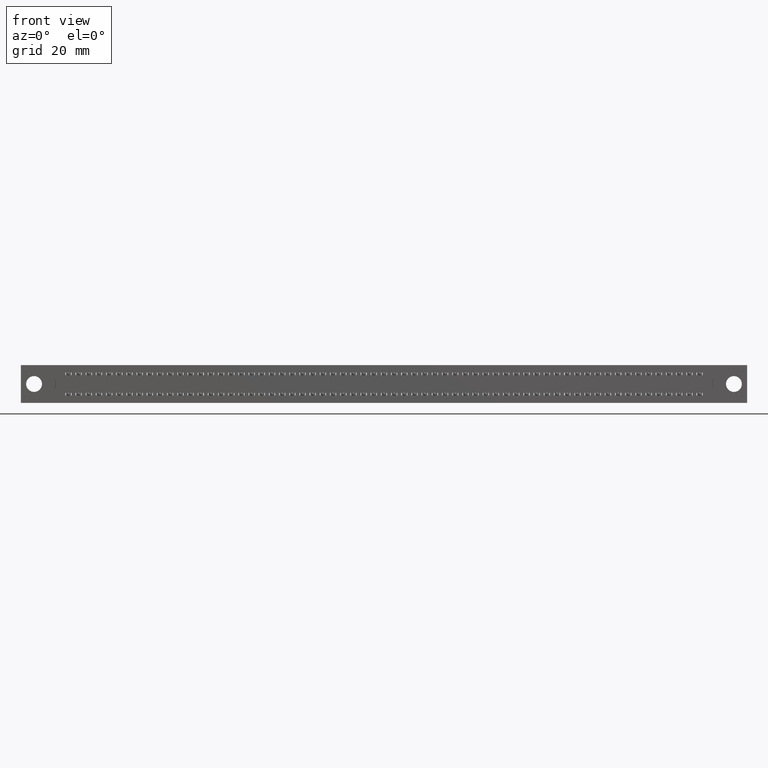
[diagram: clean part render]
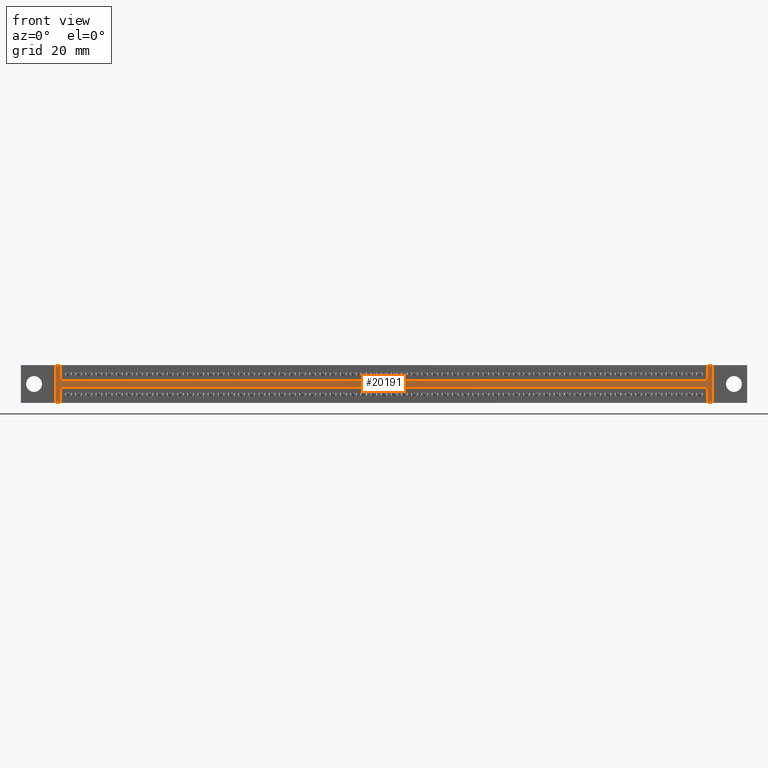
[diagram: same view with one face highlighted and labeled with its STEP entity id]
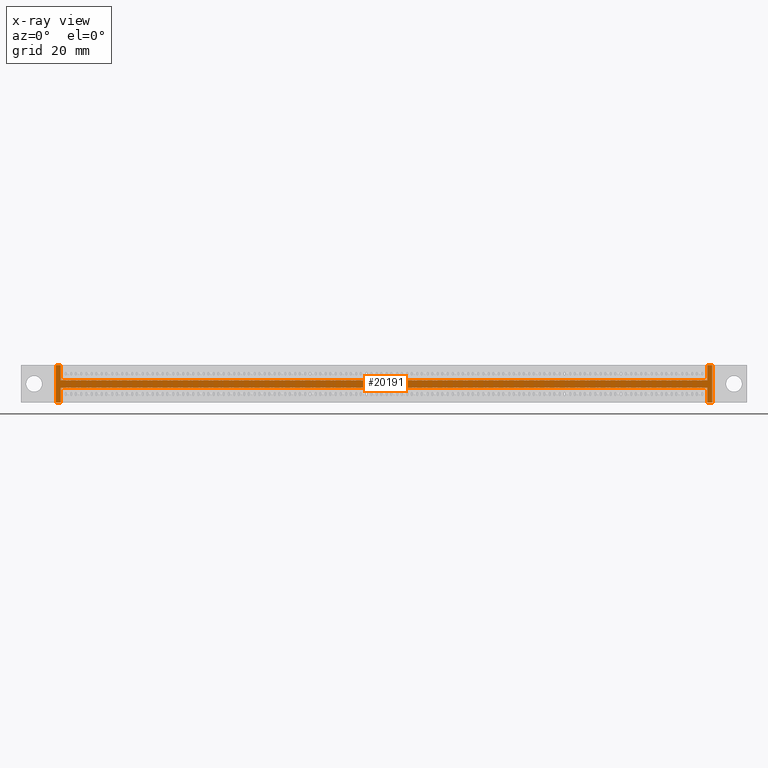
[diagram: x-ray of the same camera — body ghosted, the highlighted face saturated]
A machine part, front view. The second image highlights one B-rep face of the part: STEP entity #20191.
The next image is the same camera in x-ray: the body ghosted, the highlighted face saturated — about 0% of this face is hidden behind the body in this view.
In plain terms, the highlighted planar face has unit normal (0, -1, 0).
Its self-contained STEP definition (entity closure, byte-faithful):
#808 = CARTESIAN_POINT ( 'NONE',  ( 6.742500000000000604, 0.0000000000000000000, -0.3699999999999999956 ) ) ;
#840 = VERTEX_POINT ( 'NONE', #14764 ) ;
#1651 = ORIENTED_EDGE ( 'NONE', *, *, #38375, .F. ) ;
#1678 = ORIENTED_EDGE ( 'NONE', *, *, #32855, .F. ) ;
#1774 = DIRECTION ( 'NONE',  ( 1.000000000000000000, 0.0000000000000000000, 0.0000000000000000000 ) ) ;
#1784 = CARTESIAN_POINT ( 'NONE',  ( 0.3924999999999996825, 0.0000000000000000000, -0.2200000000000000011 ) ) ;
#2070 = ORIENTED_EDGE ( 'NONE', *, *, #26299, .F. ) ;
#2328 = EDGE_CURVE ( 'NONE', #6102, #31407, #37503, .T. ) ;
#2825 = LINE ( 'NONE', #32724, #32345 ) ;
#4207 = CARTESIAN_POINT ( 'NONE',  ( 6.792500000000000426, 0.0000000000000000000, 0.0000000000000000000 ) ) ;
#4378 = PLANE ( 'NONE',  #44230 ) ;
#4789 = EDGE_CURVE ( 'NONE', #840, #33948, #12885, .T. ) ;
#5334 = DIRECTION ( 'NONE',  ( 0.0000000000000000000, -0.0000000000000000000, -1.000000000000000000 ) ) ;
#5468 = CARTESIAN_POINT ( 'NONE',  ( 6.792500000000000426, 0.0000000000000000000, -0.3699999999999992184 ) ) ;
#5729 = VECTOR ( 'NONE', #9466, 39.37007874015748143 ) ;
#6102 = VERTEX_POINT ( 'NONE', #5468 ) ;
#6155 = EDGE_CURVE ( 'NONE', #34598, #6102, #2825, .T. ) ;
#6269 = DIRECTION ( 'NONE',  ( 1.000000000000000000, 0.0000000000000000000, 0.0000000000000000000 ) ) ;
#7618 = DIRECTION ( 'NONE',  ( -0.0000000000000000000, -0.0000000000000000000, -1.000000000000000000 ) ) ;
#9395 = ORIENTED_EDGE ( 'NONE', *, *, #33002, .F. ) ;
#9466 = DIRECTION ( 'NONE',  ( -0.0000000000000000000, -0.0000000000000000000, 1.000000000000000000 ) ) ;
#10667 = VECTOR ( 'NONE', #6269, 39.37007874015748143 ) ;
#12167 = CARTESIAN_POINT ( 'NONE',  ( 0.3924999999999996825, 0.0000000000000000000, -0.3699999999999999956 ) ) ;
#12799 = VERTEX_POINT ( 'NONE', #40262 ) ;
#12885 = LINE ( 'NONE', #42083, #41881 ) ;
#12991 = DIRECTION ( 'NONE',  ( 0.0000000000000000000, -1.000000000000000000, 0.0000000000000000000 ) ) ;
#13069 = CARTESIAN_POINT ( 'NONE',  ( 0.3925000000000002376, 0.0000000000000000000, 0.0000000000000000000 ) ) ;
#13315 = LINE ( 'NONE', #13069, #43502 ) ;
#13498 = CARTESIAN_POINT ( 'NONE',  ( 6.742500000000000604, 0.0000000000000000000, -0.3699999999999999956 ) ) ;
#14308 = EDGE_CURVE ( 'NONE', #43034, #28997, #34808, .T. ) ;
#14764 = CARTESIAN_POINT ( 'NONE',  ( 0.3425000000000011369, 0.0000000000000000000, -0.3700000000000001621 ) ) ;
#16387 = LINE ( 'NONE', #13498, #34159 ) ;
#16739 = ORIENTED_EDGE ( 'NONE', *, *, #14308, .F. ) ;
#17171 = ORIENTED_EDGE ( 'NONE', *, *, #37659, .F. ) ;
#17652 = CARTESIAN_POINT ( 'NONE',  ( 6.742500000000000604, 0.0000000000000000000, -0.1499999999999999944 ) ) ;
#20191 = ADVANCED_FACE ( 'NONE', ( #22575 ), #4378, .T. ) ;
#20699 = LINE ( 'NONE', #35315, #5729 ) ;
#21971 = CARTESIAN_POINT ( 'NONE',  ( 0.3924999999999996825, 0.0000000000000000000, -0.3699999999999999956 ) ) ;
#22575 = FACE_OUTER_BOUND ( 'NONE', #31795, .T. ) ;
#22884 = CARTESIAN_POINT ( 'NONE',  ( 0.0000000000000000000, 0.0000000000000000000, -0.3700000000000001621 ) ) ;
#23679 = ORIENTED_EDGE ( 'NONE', *, *, #44575, .F. ) ;
#24809 = VECTOR ( 'NONE', #44127, 39.37007874015748143 ) ;
#25783 = LINE ( 'NONE', #39705, #33335 ) ;
#26066 = EDGE_CURVE ( 'NONE', #28997, #29055, #20699, .T. ) ;
#26234 = DIRECTION ( 'NONE',  ( -1.000000000000000000, -0.0000000000000000000, -1.914399434943422006E-17 ) ) ;
#26299 = EDGE_CURVE ( 'NONE', #33948, #12799, #29516, .T. ) ;
#26672 = CARTESIAN_POINT ( 'NONE',  ( 0.3925000000000002376, 0.0000000000000000000, -0.1499999999999999944 ) ) ;
#27183 = DIRECTION ( 'NONE',  ( -1.000000000000000000, -0.0000000000000000000, -1.914399434943422006E-17 ) ) ;
#27667 = DIRECTION ( 'NONE',  ( 0.0000000000000000000, 0.0000000000000000000, -1.000000000000000000 ) ) ;
#28458 = ORIENTED_EDGE ( 'NONE', *, *, #6155, .F. ) ;
#28812 = CARTESIAN_POINT ( 'NONE',  ( 0.0000000000000000000, 0.0000000000000000000, 0.0000000000000000000 ) ) ;
#28988 = ORIENTED_EDGE ( 'NONE', *, *, #2328, .F. ) ;
#28997 = VERTEX_POINT ( 'NONE', #17652 ) ;
#29055 = VERTEX_POINT ( 'NONE', #39308 ) ;
#29516 = LINE ( 'NONE', #28812, #24809 ) ;
#29608 = DIRECTION ( 'NONE',  ( -1.000000000000000000, -0.0000000000000000000, -0.0000000000000000000 ) ) ;
#30319 = ORIENTED_EDGE ( 'NONE', *, *, #33988, .F. ) ;
#31160 = VERTEX_POINT ( 'NONE', #47243 ) ;
#31234 = VECTOR ( 'NONE', #27183, 39.37007874015748143 ) ;
#31407 = VERTEX_POINT ( 'NONE', #808 ) ;
#31782 = DIRECTION ( 'NONE',  ( 0.0000000000000000000, 0.0000000000000000000, -1.000000000000000000 ) ) ;
#31795 = EDGE_LOOP ( 'NONE', ( #28458, #30319, #45906, #16739, #9395, #2070, #39420, #1678, #23679, #17171, #1651, #28988 ) ) ;
#31869 = CARTESIAN_POINT ( 'NONE',  ( 0.3425000000000010814, 0.0000000000000000000, 0.0000000000000000000 ) ) ;
#32345 = VECTOR ( 'NONE', #31782, 39.37007874015748143 ) ;
#32724 = CARTESIAN_POINT ( 'NONE',  ( 6.792500000000000426, 0.0000000000000000000, 7.898971854500427706E-16 ) ) ;
#32755 = LINE ( 'NONE', #43996, #10667 ) ;
#32855 = EDGE_CURVE ( 'NONE', #36017, #840, #44431, .T. ) ;
#32891 = VECTOR ( 'NONE', #7618, 39.37007874015748143 ) ;
#33002 = EDGE_CURVE ( 'NONE', #12799, #43034, #13315, .T. ) ;
#33335 = VECTOR ( 'NONE', #29608, 39.37007874015748143 ) ;
#33908 = CARTESIAN_POINT ( 'NONE',  ( 0.0000000000000000000, 0.0000000000000000000, -0.3700000000000001621 ) ) ;
#33948 = VERTEX_POINT ( 'NONE', #31869 ) ;
#33988 = EDGE_CURVE ( 'NONE', #29055, #34598, #32755, .T. ) ;
#34159 = VECTOR ( 'NONE', #41998, 39.37007874015748143 ) ;
#34598 = VERTEX_POINT ( 'NONE', #4207 ) ;
#34808 = LINE ( 'NONE', #26672, #39404 ) ;
#35315 = CARTESIAN_POINT ( 'NONE',  ( 6.742500000000000604, 0.0000000000000000000, 0.0000000000000000000 ) ) ;
#36017 = VERTEX_POINT ( 'NONE', #12167 ) ;
#37503 = LINE ( 'NONE', #22884, #44887 ) ;
#37659 = EDGE_CURVE ( 'NONE', #31160, #42106, #25783, .T. ) ;
#38137 = CARTESIAN_POINT ( 'NONE',  ( 0.0000000000000000000, 0.0000000000000000000, -0.3700000000000001621 ) ) ;
#38375 = EDGE_CURVE ( 'NONE', #31407, #31160, #16387, .T. ) ;
#38511 = DIRECTION ( 'NONE',  ( -1.845843238962339753E-16, -0.0000000000000000000, 1.000000000000000000 ) ) ;
#38773 = CARTESIAN_POINT ( 'NONE',  ( 0.3925000000000002376, 0.0000000000000000000, -0.1499999999999999944 ) ) ;
#39308 = CARTESIAN_POINT ( 'NONE',  ( 6.742500000000000604, 0.0000000000000000000, 0.0000000000000000000 ) ) ;
#39404 = VECTOR ( 'NONE', #1774, 39.37007874015748143 ) ;
#39420 = ORIENTED_EDGE ( 'NONE', *, *, #4789, .F. ) ;
#39705 = CARTESIAN_POINT ( 'NONE',  ( 0.3924999999999996825, 0.0000000000000000000, -0.2200000000000000011 ) ) ;
#39951 = LINE ( 'NONE', #21971, #32891 ) ;
#40262 = CARTESIAN_POINT ( 'NONE',  ( 0.3925000000000002376, 0.0000000000000000000, 0.0000000000000000000 ) ) ;
#41881 = VECTOR ( 'NONE', #38511, 39.37007874015748143 ) ;
#41998 = DIRECTION ( 'NONE',  ( 0.0000000000000000000, 0.0000000000000000000, 1.000000000000000000 ) ) ;
#42083 = CARTESIAN_POINT ( 'NONE',  ( 0.3425000000000010814, 0.0000000000000000000, 0.0000000000000000000 ) ) ;
#42106 = VERTEX_POINT ( 'NONE', #1784 ) ;
#43034 = VERTEX_POINT ( 'NONE', #38773 ) ;
#43502 = VECTOR ( 'NONE', #27667, 39.37007874015748143 ) ;
#43996 = CARTESIAN_POINT ( 'NONE',  ( 0.0000000000000000000, 0.0000000000000000000, 0.0000000000000000000 ) ) ;
#44127 = DIRECTION ( 'NONE',  ( 1.000000000000000000, 0.0000000000000000000, 0.0000000000000000000 ) ) ;
#44230 = AXIS2_PLACEMENT_3D ( 'NONE', #38137, #12991, #5334 ) ;
#44431 = LINE ( 'NONE', #33908, #31234 ) ;
#44575 = EDGE_CURVE ( 'NONE', #42106, #36017, #39951, .T. ) ;
#44887 = VECTOR ( 'NONE', #26234, 39.37007874015748143 ) ;
#45906 = ORIENTED_EDGE ( 'NONE', *, *, #26066, .F. ) ;
#47243 = CARTESIAN_POINT ( 'NONE',  ( 6.742500000000000604, 0.0000000000000000000, -0.2200000000000000011 ) ) ;